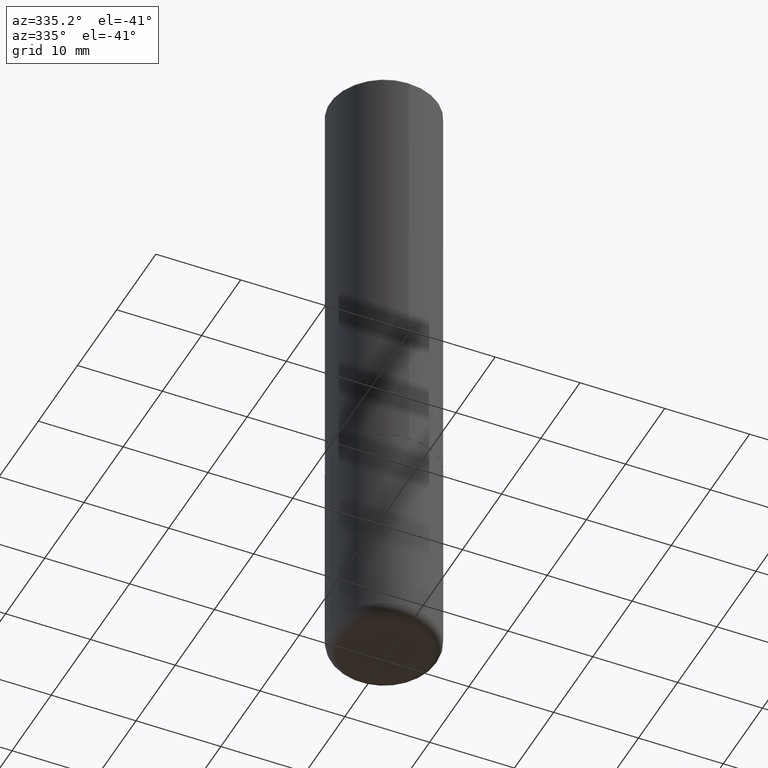
[diagram: clean part render]
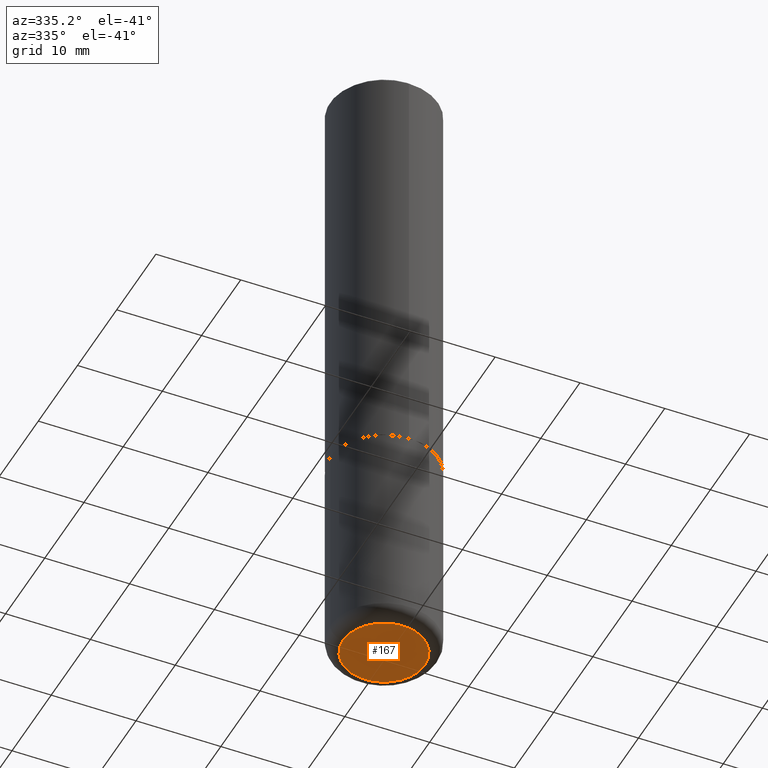
[diagram: same view with one face highlighted and labeled with its STEP entity id]
A machine part, auxiliary view. The second image highlights one B-rep face of the part: STEP entity #167.
In plain terms, the highlighted planar face has unit normal (0, -0, -1).
Its self-contained STEP definition (entity closure, byte-faithful):
#15 = CIRCLE ( 'NONE', #191, 0.1899999999999999745 ) ;
#20 = EDGE_LOOP ( 'NONE', ( #125, #78 ) ) ;
#28 = DIRECTION ( 'NONE',  ( 1.000000000000000000, -6.982962677686273021E-15, 0.000000000000000000 ) ) ;
#40 = EDGE_CURVE ( 'NONE', #84, #383, #15, .T. ) ;
#78 = ORIENTED_EDGE ( 'NONE', *, *, #40, .F. ) ;
#84 = VERTEX_POINT ( 'NONE', #89 ) ;
#89 = CARTESIAN_POINT ( 'NONE',  ( -0.1899999999999999745, -8.806505557691924342E-15, -2.999999999999999556 ) ) ;
#125 = ORIENTED_EDGE ( 'NONE', *, *, #395, .F. ) ;
#132 = CARTESIAN_POINT ( 'NONE',  ( 1.336053039146161825E-28, -1.847555615484388985E-15, -2.999999999999999556 ) ) ;
#136 = DIRECTION ( 'NONE',  ( -2.445468806185136597E-29, 3.491481338843145583E-15, 1.000000000000000000 ) ) ;
#167 = ADVANCED_FACE ( 'NONE', ( #221 ), #287, .T. ) ;
#191 = AXIS2_PLACEMENT_3D ( 'NONE', #412, #136, #353 ) ;
#221 = FACE_OUTER_BOUND ( 'NONE', #20, .T. ) ;
#223 = AXIS2_PLACEMENT_3D ( 'NONE', #132, #388, #350 ) ;
#263 = CARTESIAN_POINT ( 'NONE',  ( 0.1899999999999999745, -1.180120692528982640E-14, -2.999999999999999556 ) ) ;
#287 = PLANE ( 'NONE',  #223 ) ;
#321 = CIRCLE ( 'NONE', #367, 0.1899999999999999745 ) ;
#343 = DIRECTION ( 'NONE',  ( -2.445468806185136597E-29, 3.491481338843145583E-15, 1.000000000000000000 ) ) ;
#350 = DIRECTION ( 'NONE',  ( -1.000000000000000000, 6.982962677686265922E-15, -4.876176775795935793E-29 ) ) ;
#353 = DIRECTION ( 'NONE',  ( 1.000000000000000000, -6.982962677686273021E-15, 0.000000000000000000 ) ) ;
#367 = AXIS2_PLACEMENT_3D ( 'NONE', #392, #343, #28 ) ;
#383 = VERTEX_POINT ( 'NONE', #263 ) ;
#388 = DIRECTION ( 'NONE',  ( 2.438088387897960049E-29, -3.491481338843145188E-15, -1.000000000000000000 ) ) ;
#392 = CARTESIAN_POINT ( 'NONE',  ( 7.336406418555408669E-29, -1.047444401652943478E-14, -2.999999999999999556 ) ) ;
#395 = EDGE_CURVE ( 'NONE', #383, #84, #321, .T. ) ;
#412 = CARTESIAN_POINT ( 'NONE',  ( 7.336406418555408669E-29, -1.047444401652943478E-14, -2.999999999999999556 ) ) ;